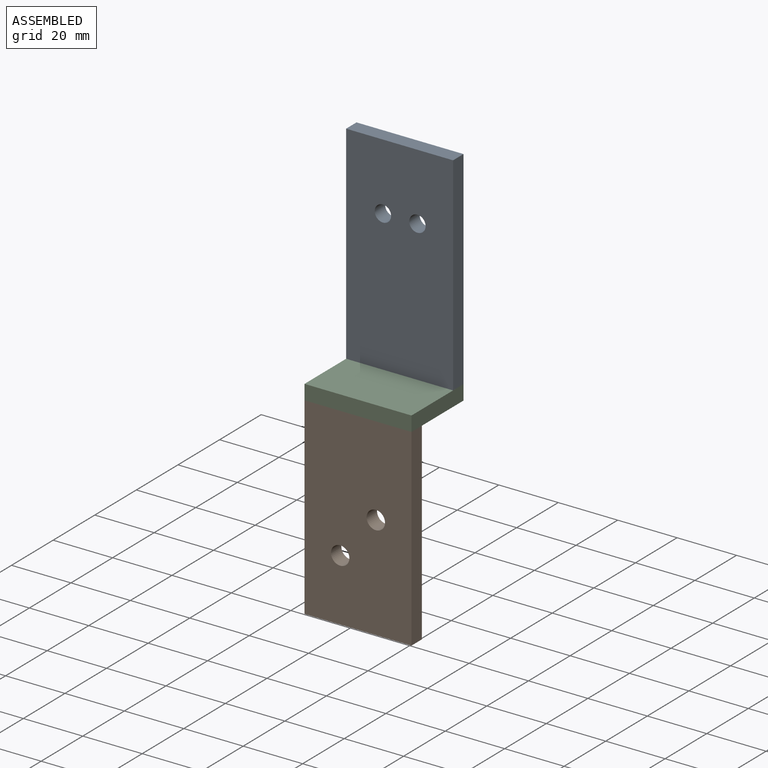
[diagram: assembled view]
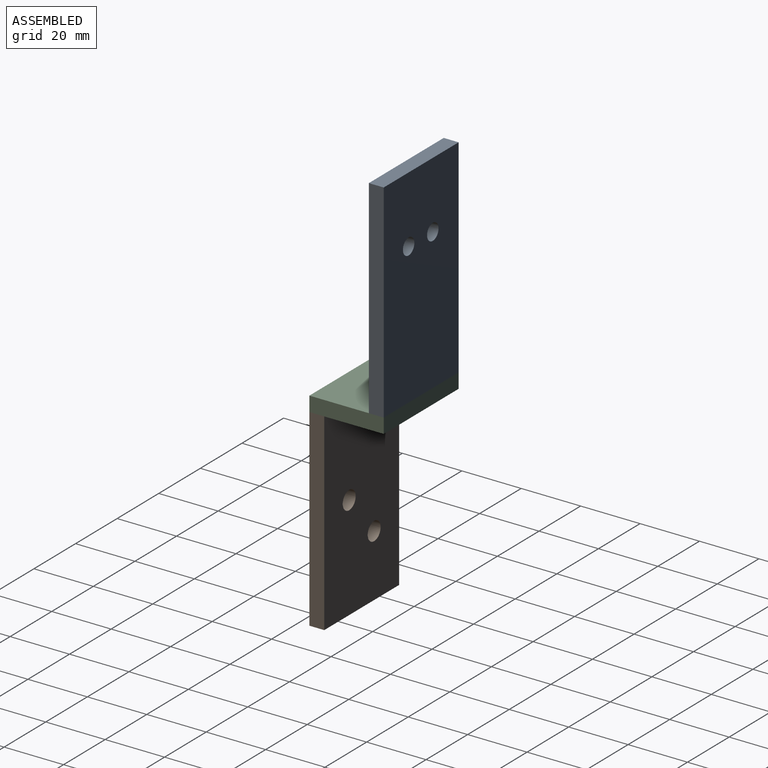
[diagram: assembled view, second angle]
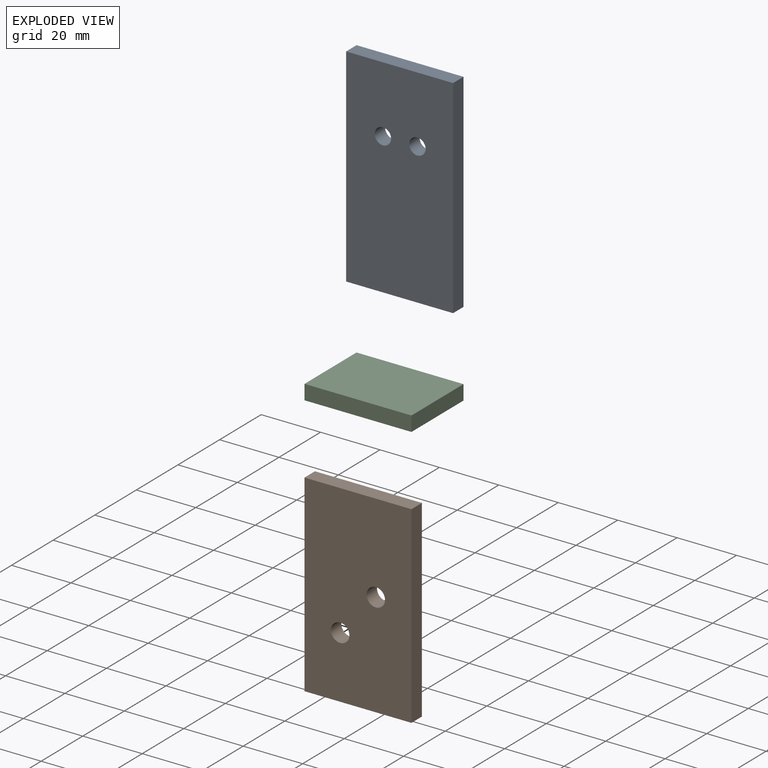
[diagram: exploded view]
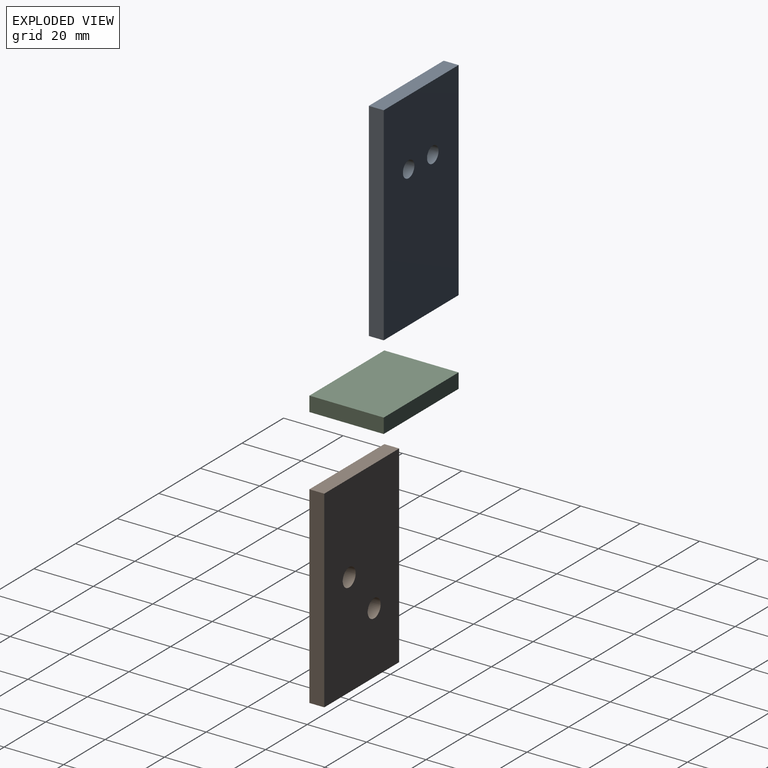
[diagram: exploded view, second angle]
ASSEMBLY  parts=3 mates=2
PART A: 8 faces, bbox 36x5x70 mm
  f0: plane 36x5mm, normal (0,0,1), area 180mm2, adj f1,f5,f6,f7
  f1: plane 70x5mm, normal (-1,0,0), area 350mm2, adj f0,f2,f6,f7
  f2: plane 36x5mm, normal (0,0,-1), area 180mm2, adj f1,f5,f6,f7
  f3: cylinder r=2.75mm len=5.5mm, axis (0,1,0), area 86.4mm2, adj f6,f7
  f4: cylinder r=2.75mm len=5.5mm, axis (0,1,0), area 86.4mm2, adj f6,f7
  f5: plane 70x5mm, normal (1,0,0), area 350mm2, adj f0,f2,f6,f7
  f6: plane 70x36mm, normal (0,-1,0), area 2472.5mm2, adj f0,f1,f2,f3,f4,f5
  f7: plane 70x36mm, normal (0,1,0), area 2472.5mm2, adj f0,f1,f2,f3,f4,f5
PART B: 8 faces, bbox 36x5x65 mm
  f0: plane 36x5mm, normal (0,0,1), area 180mm2, adj f1,f5,f6,f7
  f1: plane 65x5mm, normal (-1,0,0), area 325mm2, adj f0,f2,f6,f7
  f2: plane 36x5mm, normal (0,0,-1), area 180mm2, adj f1,f5,f6,f7
  f3: cylinder r=3.1mm len=6.2mm, axis (0,1,0), area 97.4mm2, adj f6,f7
  f4: cylinder r=3.1mm len=6.2mm, axis (0,1,0), area 97.4mm2, adj f6,f7
  f5: plane 65x5mm, normal (1,0,0), area 325mm2, adj f0,f2,f6,f7
  f6: plane 65x36mm, normal (0,-1,0), area 2279.6mm2, adj f0,f1,f2,f3,f4,f5
  f7: plane 65x36mm, normal (0,1,0), area 2279.6mm2, adj f0,f1,f2,f3,f4,f5
PART C: 6 faces, bbox 36x25x5 mm
  f0: plane 25x5mm, normal (-1,0,0), area 125mm2, adj f1,f3,f4,f5
  f1: plane 36x5mm, normal (0,-1,0), area 180mm2, adj f0,f2,f4,f5
  f2: plane 25x5mm, normal (1,0,0), area 125mm2, adj f1,f3,f4,f5
  f3: plane 36x5mm, normal (0,1,0), area 180mm2, adj f0,f2,f4,f5
  f4: plane 36x25mm, normal (0,0,1), area 900mm2, adj f0,f1,f2,f3
  f5: plane 36x25mm, normal (0,0,-1), area 900mm2, adj f0,f1,f2,f3
PLACE A t=(-23.62,60.17,-83.55)mm
PLACE B t=(106.63,40.17,-82.5)mm
PLACE C t=(37.14,43.41,-113.8)mm
MATE fastened A.f2 <-> C.f4  axis (0,0,-1) through (14.02,60.17,-108.8)mm
MATE fastened B.f0 <-> C.f5  axis (0,0,1) through (14.02,35.17,-113.8)mm
